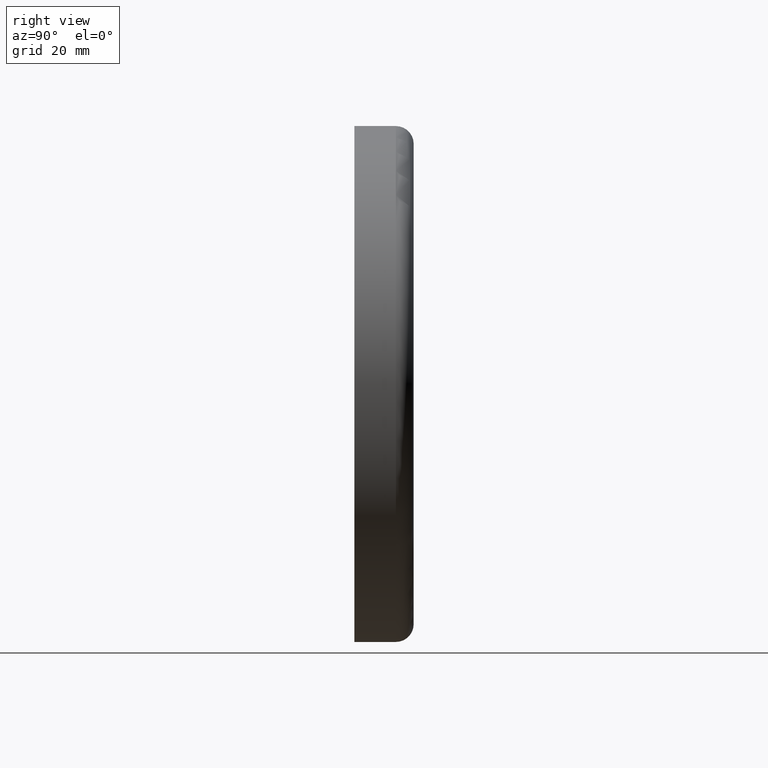
[diagram: clean part render]
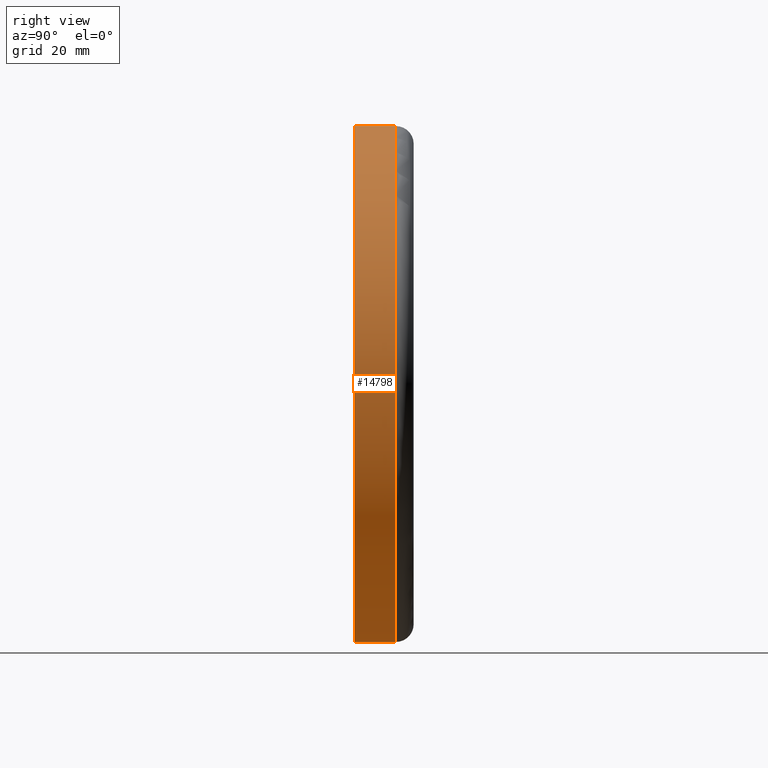
[diagram: same view with one face highlighted and labeled with its STEP entity id]
A machine part, right view. The second image highlights one B-rep face of the part: STEP entity #14798.
In plain terms, the highlighted cylindrical surface (partial cylindrical patch) has radius 43.5 mm, axis along (-0, -1, -0).
Its self-contained STEP definition (entity closure, byte-faithful):
#43 = DIRECTION ( 'NONE',  ( -0.000000000000000000, -1.000000000000000000, -0.000000000000000000 ) ) ;
#73 = VERTEX_POINT ( 'NONE', #15443 ) ;
#195 = DIRECTION ( 'NONE',  ( -0.000000000000000000, -1.000000000000000000, -0.000000000000000000 ) ) ;
#1103 = AXIS2_PLACEMENT_3D ( 'NONE', #13788, #195, #15109 ) ;
#1406 = CARTESIAN_POINT ( 'NONE',  ( 5.327213576290986044E-15, 0.000000000000000000, 43.50000000000000000 ) ) ;
#1572 = DIRECTION ( 'NONE',  ( 0.000000000000000000, 0.000000000000000000, -1.000000000000000000 ) ) ;
#1759 = ORIENTED_EDGE ( 'NONE', *, *, #10366, .F. ) ;
#2370 = CYLINDRICAL_SURFACE ( 'NONE', #7141, 43.50000000000000000 ) ;
#3271 = ORIENTED_EDGE ( 'NONE', *, *, #8461, .F. ) ;
#3613 = CARTESIAN_POINT ( 'NONE',  ( 0.000000000000000000, 0.000000000000000000, -43.50000000000000000 ) ) ;
#6345 = DIRECTION ( 'NONE',  ( -0.000000000000000000, -1.000000000000000000, -0.000000000000000000 ) ) ;
#6854 = CARTESIAN_POINT ( 'NONE',  ( 0.000000000000000000, 0.000000000000000000, 0.000000000000000000 ) ) ;
#6909 = DIRECTION ( 'NONE',  ( -0.000000000000000000, -1.000000000000000000, -0.000000000000000000 ) ) ;
#7141 = AXIS2_PLACEMENT_3D ( 'NONE', #15203, #14097, #1572 ) ;
#7277 = VERTEX_POINT ( 'NONE', #9145 ) ;
#7365 = LINE ( 'NONE', #1406, #15709 ) ;
#7587 = EDGE_CURVE ( 'NONE', #73, #7880, #7365, .T. ) ;
#7811 = EDGE_LOOP ( 'NONE', ( #10637, #11944, #1759, #3271 ) ) ;
#7880 = VERTEX_POINT ( 'NONE', #11847 ) ;
#8135 = EDGE_CURVE ( 'NONE', #9293, #73, #14526, .T. ) ;
#8170 = DIRECTION ( 'NONE',  ( 0.000000000000000000, 0.000000000000000000, -1.000000000000000000 ) ) ;
#8461 = EDGE_CURVE ( 'NONE', #9293, #7277, #15497, .T. ) ;
#8960 = FACE_OUTER_BOUND ( 'NONE', #7811, .T. ) ;
#9145 = CARTESIAN_POINT ( 'NONE',  ( 0.000000000000000000, 0.000000000000000000, -43.50000000000000000 ) ) ;
#9293 = VERTEX_POINT ( 'NONE', #13291 ) ;
#10366 = EDGE_CURVE ( 'NONE', #7277, #7880, #15254, .T. ) ;
#10637 = ORIENTED_EDGE ( 'NONE', *, *, #8135, .T. ) ;
#11847 = CARTESIAN_POINT ( 'NONE',  ( 5.327213576290986044E-15, 0.000000000000000000, 43.50000000000000000 ) ) ;
#11944 = ORIENTED_EDGE ( 'NONE', *, *, #7587, .T. ) ;
#13291 = CARTESIAN_POINT ( 'NONE',  ( 0.000000000000000000, 6.999999999999999112, -43.50000000000000000 ) ) ;
#13788 = CARTESIAN_POINT ( 'NONE',  ( 0.000000000000000000, 6.999999999999999112, 0.000000000000000000 ) ) ;
#14097 = DIRECTION ( 'NONE',  ( -0.000000000000000000, -1.000000000000000000, -0.000000000000000000 ) ) ;
#14526 = CIRCLE ( 'NONE', #1103, 43.50000000000000000 ) ;
#14695 = VECTOR ( 'NONE', #43, 1000.000000000000000 ) ;
#14798 = ADVANCED_FACE ( 'NONE', ( #8960 ), #2370, .T. ) ;
#15109 = DIRECTION ( 'NONE',  ( 0.000000000000000000, 0.000000000000000000, -1.000000000000000000 ) ) ;
#15203 = CARTESIAN_POINT ( 'NONE',  ( 0.000000000000000000, 0.000000000000000000, 0.000000000000000000 ) ) ;
#15254 = CIRCLE ( 'NONE', #15932, 43.50000000000000000 ) ;
#15443 = CARTESIAN_POINT ( 'NONE',  ( 5.327213576290985256E-15, 6.999999999999999112, 43.50000000000000000 ) ) ;
#15497 = LINE ( 'NONE', #3613, #14695 ) ;
#15709 = VECTOR ( 'NONE', #6345, 1000.000000000000000 ) ;
#15932 = AXIS2_PLACEMENT_3D ( 'NONE', #6854, #6909, #8170 ) ;